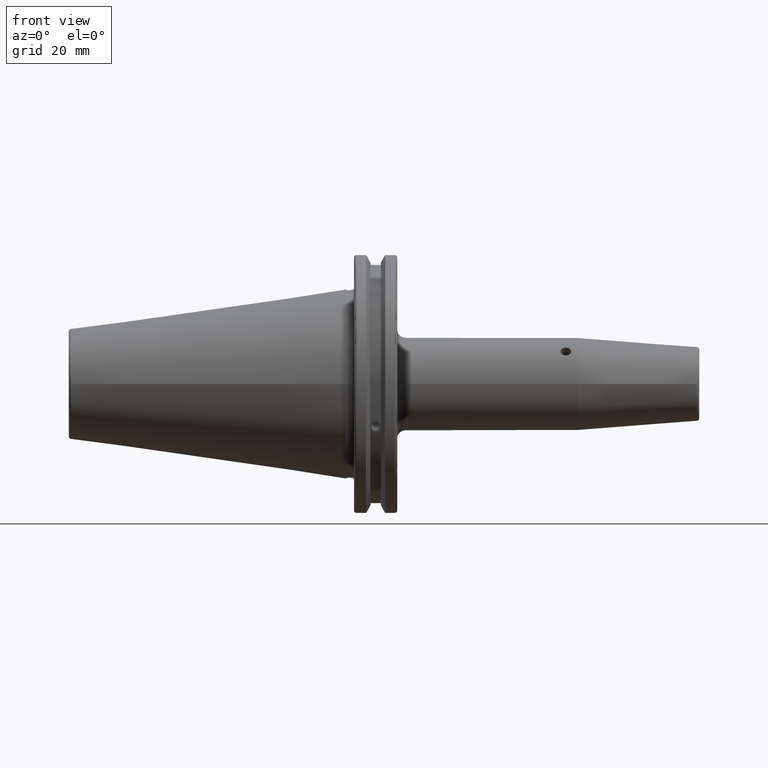
[diagram: clean part render]
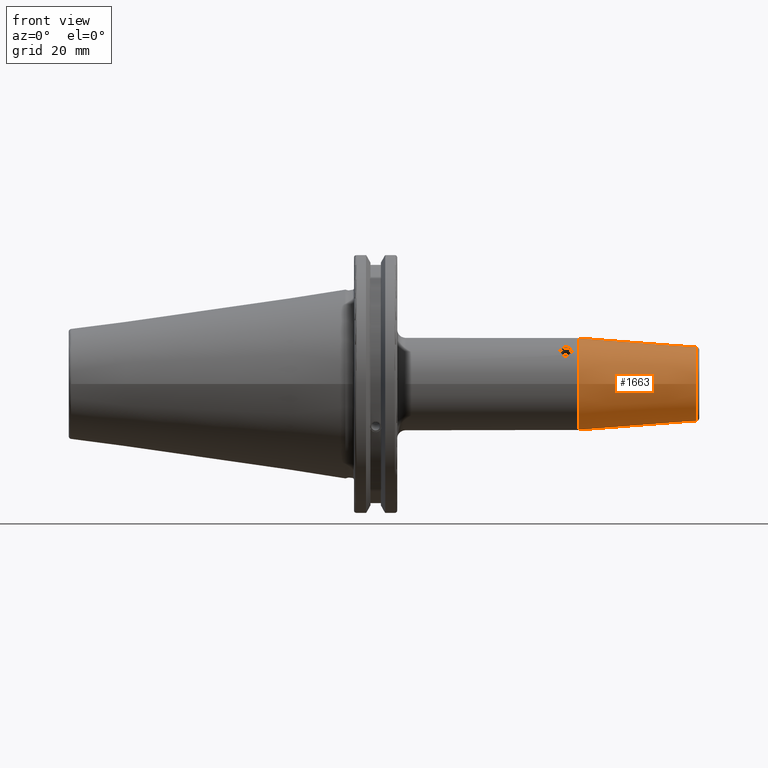
[diagram: same view with one face highlighted and labeled with its STEP entity id]
A machine part, front view. The second image highlights one B-rep face of the part: STEP entity #1663.
In plain terms, the highlighted conical surface has half-angle 4.5 deg.
Its self-contained STEP definition (entity closure, byte-faithful):
#104=CONICAL_SURFACE('',#1795,15.25,0.0785398163397448);
#128=CIRCLE('',#1793,13.5725268420749);
#129=CIRCLE('',#1794,13.5725268420749);
#130=CIRCLE('',#1796,17.);
#210=FACE_OUTER_BOUND('',#308,.T.);
#308=EDGE_LOOP('',(#1174,#1175,#1176,#1177,#1178));
#477=LINE('',#2700,#578);
#578=VECTOR('',#2012,15.25);
#701=VERTEX_POINT('',#2693);
#702=VERTEX_POINT('',#2695);
#703=VERTEX_POINT('',#2699);
#885=EDGE_CURVE('',#701,#702,#128,.T.);
#886=EDGE_CURVE('',#702,#701,#129,.T.);
#887=EDGE_CURVE('',#702,#703,#477,.T.);
#888=EDGE_CURVE('',#703,#703,#130,.T.);
#1174=ORIENTED_EDGE('',*,*,#886,.F.);
#1175=ORIENTED_EDGE('',*,*,#887,.T.);
#1176=ORIENTED_EDGE('',*,*,#888,.T.);
#1177=ORIENTED_EDGE('',*,*,#887,.F.);
#1178=ORIENTED_EDGE('',*,*,#885,.F.);
#1663=ADVANCED_FACE('',(#210),#104,.T.);
#1793=AXIS2_PLACEMENT_3D('',#2696,#2006,#2007);
#1794=AXIS2_PLACEMENT_3D('',#2697,#2008,#2009);
#1795=AXIS2_PLACEMENT_3D('',#2698,#2010,#2011);
#1796=AXIS2_PLACEMENT_3D('',#2701,#2013,#2014);
#2006=DIRECTION('center_axis',(1.,0.,0.));
#2007=DIRECTION('ref_axis',(0.,-1.,3.06161699786838E-17));
#2008=DIRECTION('center_axis',(1.,0.,0.));
#2009=DIRECTION('ref_axis',(0.,-1.,3.06161699786838E-17));
#2010=DIRECTION('center_axis',(-1.,0.,0.));
#2011=DIRECTION('ref_axis',(0.,1.,0.));
#2012=DIRECTION('',(-0.996917333733128,-0.0784590957278449,-9.6084680447101E-18));
#2013=DIRECTION('center_axis',(1.,0.,0.));
#2014=DIRECTION('ref_axis',(0.,0.,-1.));
#2693=CARTESIAN_POINT('',(129.078459095728,-1.66215515534886E-15,13.5725268420749));
#2695=CARTESIAN_POINT('',(129.078459095728,-13.5725268420749,-1.66215515534886E-15));
#2696=CARTESIAN_POINT('Origin',(129.078459095728,0.,-2.07769394418607E-15));
#2697=CARTESIAN_POINT('Origin',(129.078459095728,0.,-2.07769394418607E-15));
#2698=CARTESIAN_POINT('Origin',(107.764141711694,0.,0.));
#2699=CARTESIAN_POINT('',(85.5282834233885,-17.,-2.0818995585505E-15));
#2700=CARTESIAN_POINT('',(107.764141711694,-15.25,-1.86758636869971E-15));
#2701=CARTESIAN_POINT('Origin',(85.5282834233885,0.,0.));